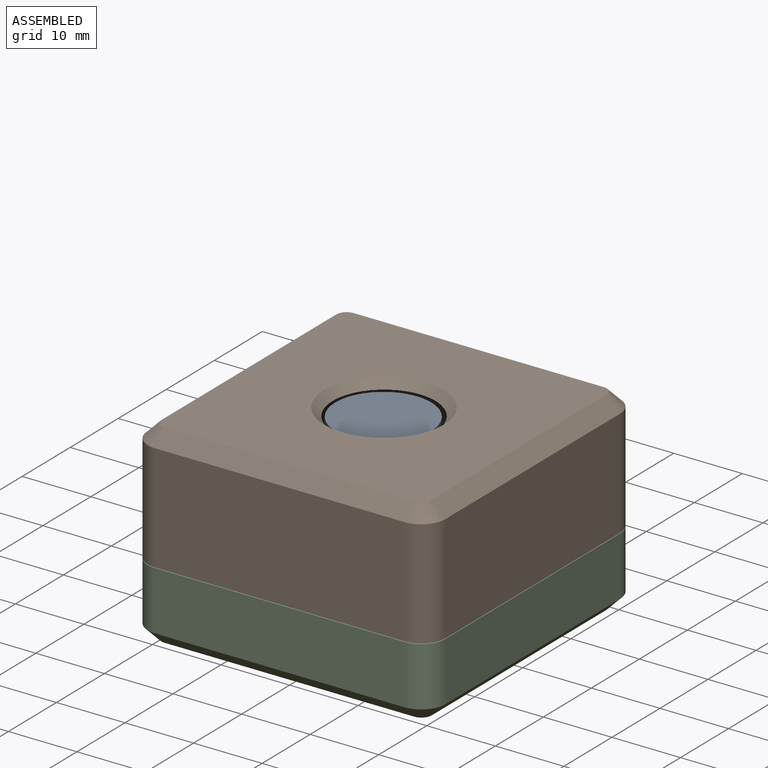
[diagram: assembled view]
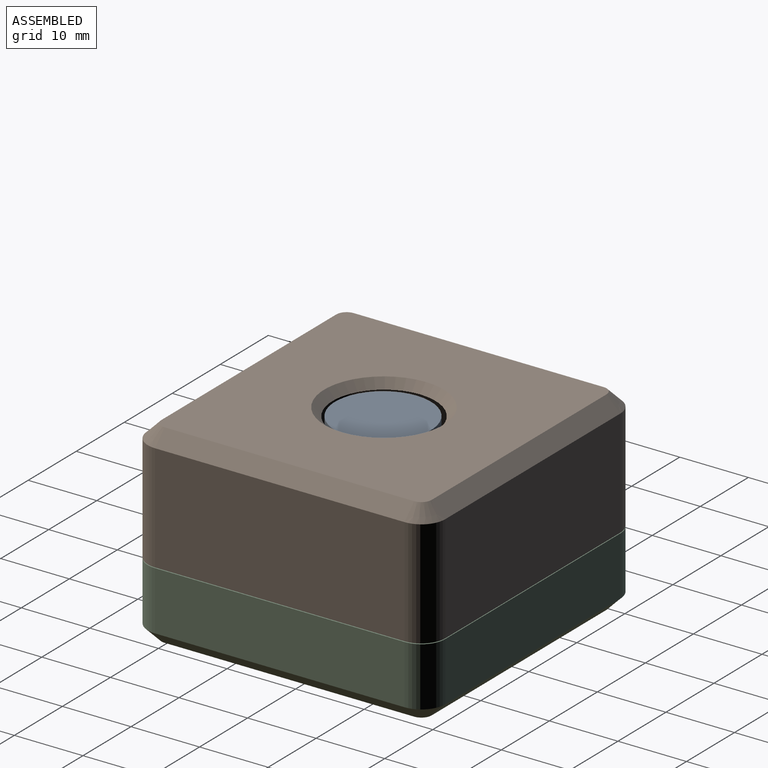
[diagram: assembled view, second angle]
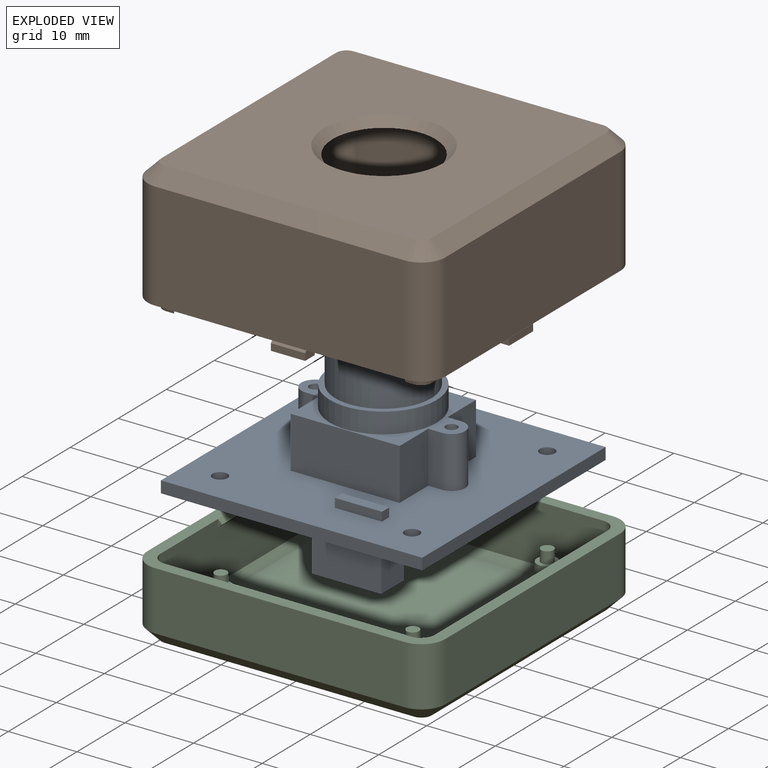
[diagram: exploded view]
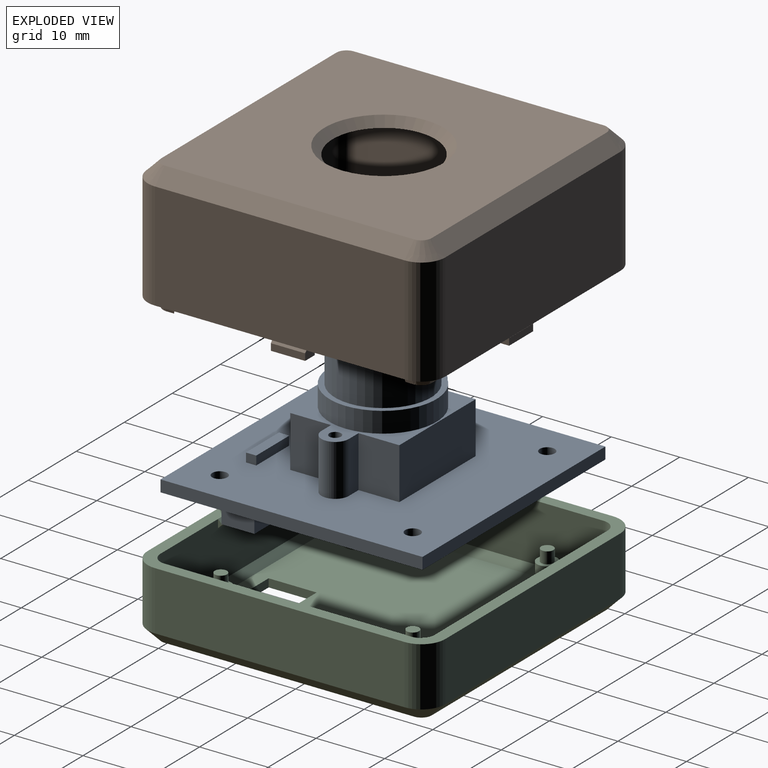
[diagram: exploded view, second angle]
ASSEMBLY  parts=3 mates=2
PART A: 46 faces, bbox 38.1x38.2x27.2 mm
  f0: cylinder r=7.8mm len=15.6mm, axis (0,0,-1), area 147mm2, adj f1,f18
  f1: plane 15.6x15.6mm, normal (0,0,1), area 37.2mm2, adj f0,f3
  f2: plane 14x14mm, normal (0,0,1), area 153.9mm2, adj f3
  f3: cylinder r=7mm len=14mm, axis (0,0,-1), area 373.8mm2, adj f1,f2
  f4: plane 7.5x2mm, normal (0,-1,0), area 15mm2, adj f5,f16,f18,f29
  f5: plane 7.5x5.95mm, normal (-1,0,0), area 44.6mm2, adj f4,f6,f18,f29
  f6: plane 15.9x7.5mm, normal (0,-1,0), area 119.2mm2, adj f5,f7,f18,f29
  f7: plane 7.5x5.95mm, normal (1,0,0), area 44.6mm2, adj f6,f8,f18,f29
  f8: plane 7.5x2mm, normal (0,-1,0), area 15mm2, adj f7,f9,f18,f29
  f9: cylinder r=2mm len=7.5mm, axis (0,0,-1), area 47.1mm2, adj f8,f10,f18,f29
  f10: plane 7.5x2mm, normal (0,1,0), area 15mm2, adj f9,f11,f18,f29
  f11: plane 7.5x5.95mm, normal (1,0,0), area 44.6mm2, adj f10,f12,f18,f29
  f12: plane 15.9x7.5mm, normal (0,1,0), area 119.2mm2, adj f11,f13,f18,f29
  f13: plane 7.5x5.95mm, normal (-1,0,0), area 44.6mm2, adj f12,f14,f18,f29
  f14: plane 7.5x2mm, normal (0,1,0), area 15mm2, adj f13,f16,f18,f29
  f15: cylinder r=0.85mm len=7.5mm, axis (0,0,-1), area 40.1mm2, adj f18,f30
  f16: cylinder r=2mm len=7.5mm, axis (0,0,-1), area 47.1mm2, adj f4,f14,f18,f29
  f17: cylinder r=0.85mm len=7.5mm, axis (0,0,-1), area 40.1mm2, adj f18,f19
  f18: plane 23.9x15.9mm, normal (0,0,1), area 85.7mm2, adj f0,f4,f5,f6,f7,f8,f9,f10
  f19: plane 1.7x1.7mm, normal (0,0,1), area 2.3mm2, adj f17
  f20: plane 38.2x38.1mm, normal (0,0,-1), area 1388mm2, adj f21,f22,f23,f24,f25,f26,f27,f28
  f21: plane 38.2x1.7mm, normal (1,0,0), area 64.9mm2, adj f20,f22,f24,f29
  f22: plane 38.1x1.7mm, normal (0,-1,0), area 64.8mm2, adj f20,f21,f23,f29
  f23: plane 38.2x1.7mm, normal (-1,0,0), area 64.9mm2, adj f20,f22,f24,f29
  f24: plane 38.1x1.7mm, normal (0,1,0), area 64.8mm2, adj f20,f21,f23,f29
  f25: cylinder r=1.1mm len=2.2mm, axis (0,0,1), area 11.7mm2, adj f20,f29
  f26: cylinder r=1.1mm len=2.2mm, axis (0,0,1), area 11.7mm2, adj f20,f29
  f27: cylinder r=1.1mm len=2.2mm, axis (0,0,1), area 11.7mm2, adj f20,f29
  f28: cylinder r=1.1mm len=2.2mm, axis (0,0,1), area 11.7mm2, adj f20,f29
  f29: plane 38.2x38.1mm, normal (0,0,1), area 1148.6mm2, adj f4,f5,f6,f7,f8,f9,f10,f11
  f30: plane 1.7x1.7mm, normal (0,0,1), area 2.3mm2, adj f15
  f31: plane 6.85x1.3mm, normal (0,-1,0), area 8.9mm2, adj f29,f32,f34,f35
  f32: plane 1.5x1.3mm, normal (1,0,0), area 1.9mm2, adj f29,f31,f33,f35
  f33: plane 6.85x1.3mm, normal (0,1,0), area 8.9mm2, adj f29,f32,f34,f35
  f34: plane 1.5x1.3mm, normal (-1,0,0), area 1.9mm2, adj f29,f31,f33,f35
  f35: plane 6.85x1.5mm, normal (0,0,1), area 10.3mm2, adj f31,f32,f33,f34
  f36: plane 6.5x4.8mm, normal (1,0,0), area 31.2mm2, adj f20,f37,f39,f40
  f37: plane 10.05x6.5mm, normal (0,-1,0), area 65.3mm2, adj f20,f36,f38,f40
  f38: plane 6.5x4.8mm, normal (-1,0,0), area 31.2mm2, adj f20,f37,f39,f40
  f39: plane 10.05x6.5mm, normal (0,1,0), area 65.3mm2, adj f20,f36,f38,f40
  f40: plane 10.05x4.8mm, normal (0,0,-1), area 48.2mm2, adj f36,f37,f38,f39
  f41: plane 2x1.3mm, normal (0,-1,0), area 2.6mm2, adj f20,f42,f44,f45
  f42: plane 2x1.3mm, normal (-1,0,0), area 2.6mm2, adj f20,f41,f43,f45
  f43: plane 2x1.3mm, normal (0,1,0), area 2.6mm2, adj f20,f42,f44,f45
  f44: plane 2x1.3mm, normal (1,0,0), area 2.6mm2, adj f20,f41,f43,f45
  f45: plane 2x2mm, normal (0,0,-1), area 4mm2, adj f41,f42,f43,f44
PART B: 92 faces, bbox 43.4x43.4x20.1 mm
  f0: plane 36x15.5mm, normal (0,-1,0), area 540.4mm2, adj f2,f7,f19,f37,f40,f45,f62,f77
  f1: plane 36x15.5mm, normal (-1,0,0), area 540.4mm2, adj f2,f4,f15,f37,f43,f46,f66,f76
  f2: cylinder r=2mm len=14.42mm, axis (0,0,1), area 44.1mm2, adj f0,f1,f64,f77
  f3: plane 36x15.5mm, normal (0,1,0), area 540.4mm2, adj f4,f6,f23,f37,f42,f44,f63,f75
  f4: cylinder r=2mm len=14.42mm, axis (0,0,-1), area 44.1mm2, adj f1,f3,f65,f76
  f5: plane 36x15.5mm, normal (1,0,0), area 540.4mm2, adj f6,f7,f30,f37,f39,f41,f59,f75
  f6: cylinder r=2mm len=14.42mm, axis (0,0,1), area 44.1mm2, adj f3,f5,f61,f75
  f7: cylinder r=2mm len=14.42mm, axis (0,0,-1), area 44.1mm2, adj f0,f5,f60,f78
  f8: plane 5x1mm, normal (1,0,0), area 5mm2, adj f13,f25,f43,f46
  f9: plane 5x1mm, normal (0,1,0), area 5mm2, adj f17,f38,f40,f45
  f10: plane 5x1mm, normal (0,-1,0), area 5mm2, adj f21,f26,f42,f44
  f11: plane 5x1mm, normal (-1,0,0), area 5mm2, adj f27,f28,f39,f41
  f12: plane 5x3.6mm, normal (-1,0,0), area 18mm2, adj f15,f25,f43,f46
  f13: plane 5x0.7mm, normal (0.71,0,-0.71), area 4.9mm2, adj f8,f14,f43,f46
  f14: plane 5x0.7mm, normal (0.71,0,0.71), area 4.9mm2, adj f13,f37,f43,f46
  f15: plane 5x2mm, normal (-0.71,0,-0.71), area 14.1mm2, adj f1,f12,f43,f46
  f16: plane 5x3.6mm, normal (0,-1,0), area 18mm2, adj f19,f38,f40,f45
  f17: plane 5x0.7mm, normal (0,0.71,-0.71), area 4.9mm2, adj f9,f18,f40,f45
  f18: plane 5x0.7mm, normal (0,0.71,0.71), area 4.9mm2, adj f17,f37,f40,f45
  f19: plane 5x2mm, normal (0,-0.71,-0.71), area 14.1mm2, adj f0,f16,f40,f45
  f20: plane 5x3.6mm, normal (0,1,0), area 18mm2, adj f23,f26,f42,f44
  f21: plane 5x0.7mm, normal (0,-0.71,-0.71), area 4.9mm2, adj f10,f22,f42,f44
  f22: plane 5x0.7mm, normal (0,-0.71,0.71), area 4.9mm2, adj f21,f37,f42,f44
  f23: plane 5x2mm, normal (0,0.71,-0.71), area 14.1mm2, adj f3,f20,f42,f44
  f24: plane 5x3.6mm, normal (1,0,0), area 18mm2, adj f27,f30,f39,f41
  f25: plane 5x2mm, normal (0,0,1), area 10mm2, adj f8,f12,f43,f46
  f26: plane 5x2mm, normal (0,0,1), area 10mm2, adj f10,f20,f42,f44
  f27: plane 5x2mm, normal (0,0,1), area 10mm2, adj f11,f24,f39,f41
  f28: plane 5x0.7mm, normal (-0.71,0,-0.71), area 4.9mm2, adj f11,f29,f39,f41
  f29: plane 5x0.7mm, normal (-0.71,0,0.71), area 4.9mm2, adj f28,f37,f39,f41
  f30: plane 5x2mm, normal (0.71,0,-0.71), area 14.1mm2, adj f5,f24,f39,f41
  f31: plane 38x38mm, normal (0,0,1), area 1266.4mm2, adj f59,f60,f61,f62,f63,f64,f65,f66
  f32: plane 36.4x15.7mm, normal (0,1,0), area 571.5mm2, adj f37,f47,f50,f58
  f33: plane 36.4x15.7mm, normal (-1,0,0), area 571.5mm2, adj f37,f47,f48,f54
  f34: plane 36.4x15.7mm, normal (0,-1,0), area 571.5mm2, adj f37,f48,f49,f51
  f35: plane 36.4x15.7mm, normal (1,0,0), area 571.5mm2, adj f37,f49,f50,f55
  f36: plane 39.4x39.4mm, normal (0,0,-1), area 1312.6mm2, adj f51,f52,f53,f54,f55,f56,f57,f58
  f37: plane 43.4x43.4mm, normal (0,0,1), area 276.5mm2, adj f0,f1,f3,f5,f14,f18,f22,f29
  f38: plane 5x2mm, normal (0,0,1), area 10mm2, adj f9,f16,f40,f45
  f39: plane 5.6x2mm, normal (0,1,0), area 8.7mm2, adj f5,f11,f24,f27,f28,f29,f30
  f40: plane 5.6x2mm, normal (-1,0,0), area 8.7mm2, adj f0,f9,f16,f17,f18,f19,f38
  f41: plane 5.6x2mm, normal (0,-1,0), area 8.7mm2, adj f5,f11,f24,f27,f28,f29,f30
  f42: plane 5.6x2mm, normal (-1,0,0), area 8.7mm2, adj f3,f10,f20,f21,f22,f23,f26
  f43: plane 5.6x2mm, normal (0,-1,0), area 8.7mm2, adj f1,f8,f12,f13,f14,f15,f25
  f44: plane 5.6x2mm, normal (1,0,0), area 8.7mm2, adj f3,f10,f20,f21,f22,f23,f26
  f45: plane 5.6x2mm, normal (1,0,0), area 8.7mm2, adj f0,f9,f16,f17,f18,f19,f38
  f46: plane 5.6x2mm, normal (0,1,0), area 8.7mm2, adj f1,f8,f12,f13,f14,f15,f25
  f47: cylinder r=3.5mm len=15.7mm, axis (0,0,-1), area 86.3mm2, adj f32,f33,f37,f56
  f48: cylinder r=3.5mm len=15.7mm, axis (0,0,1), area 86.3mm2, adj f33,f34,f37,f52
  f49: cylinder r=3.5mm len=15.7mm, axis (0,0,-1), area 86.3mm2, adj f34,f35,f37,f53
  f50: cylinder r=3.5mm len=15.7mm, axis (0,0,1), area 86.3mm2, adj f32,f35,f37,f57
  f51: plane 36.4x2mm, normal (0,-0.71,-0.71), area 103mm2, adj f34,f36,f52,f53
  f52: cone r=1.5mm half-angle=45deg, axis (0,0,1), area 11.1mm2, adj f36,f48,f51,f54
  f53: cone r=1.5mm half-angle=45deg, axis (0,0,1), area 11.1mm2, adj f36,f49,f51,f55
  f54: plane 36.4x2mm, normal (-0.71,0,-0.71), area 103mm2, adj f33,f36,f52,f56
  f55: plane 36.4x2mm, normal (0.71,0,-0.71), area 103mm2, adj f35,f36,f53,f57
  f56: cone r=1.5mm half-angle=45deg, axis (0,0,1), area 11.1mm2, adj f36,f47,f54,f58
  f57: cone r=1.5mm half-angle=45deg, axis (0,0,1), area 11.1mm2, adj f36,f50,f55,f58
  f58: plane 36.4x2mm, normal (0,0.71,-0.71), area 103mm2, adj f32,f36,f56,f57
  f59: plane 36x1mm, normal (0.71,0,0.71), area 50.9mm2, adj f5,f31,f60,f61
  f60: cone r=1mm half-angle=45deg, axis (0,0,1), area 3.3mm2, adj f7,f31,f59,f62
  f61: cone r=1mm half-angle=45deg, axis (0,0,1), area 3.3mm2, adj f6,f31,f59,f63
  f62: plane 36x1mm, normal (0,-0.71,0.71), area 50.9mm2, adj f0,f31,f60,f64
  f63: plane 36x1mm, normal (0,0.71,0.71), area 50.9mm2, adj f3,f31,f61,f65
  f64: cone r=1mm half-angle=45deg, axis (0,0,1), area 3.3mm2, adj f2,f31,f62,f66
  f65: cone r=1mm half-angle=45deg, axis (0,0,1), area 3.3mm2, adj f4,f31,f63,f66
  f66: plane 36x1mm, normal (-0.71,0,0.71), area 50.9mm2, adj f1,f31,f64,f65
  f67: plane 3.52x3.52mm, normal (0.71,-0.71,0), area 6.6mm2, adj f68,f78,f88,f90
  f68: plane 2.72x2.72mm, normal (0,0,1), area 3.1mm2, adj f67,f88,f89,f90
  f69: plane 3.52x3.52mm, normal (0.71,0.71,0), area 6.6mm2, adj f70,f75,f85,f87
  f70: plane 2.72x2.72mm, normal (0,0,1), area 3.1mm2, adj f69,f85,f86,f87
  f71: plane 3.52x3.52mm, normal (-0.71,0.71,0), area 6.6mm2, adj f72,f76,f82,f84
  f72: plane 2.72x2.72mm, normal (0,0,1), area 3.1mm2, adj f71,f82,f83,f84
  f73: plane 3.52x3.52mm, normal (-0.71,-0.71,0), area 6.6mm2, adj f74,f77,f79,f81
  f74: plane 2.72x2.72mm, normal (0,0,1), area 3.1mm2, adj f73,f79,f80,f81
  f75: plane 3.52x3.52mm, normal (0.5,0.5,-0.71), area 7.6mm2, adj f3,f5,f6,f69
  f76: plane 3.52x3.52mm, normal (-0.5,0.5,-0.71), area 7.6mm2, adj f1,f3,f4,f71
  f77: plane 3.52x3.52mm, normal (-0.5,-0.5,-0.71), area 7.6mm2, adj f0,f1,f2,f73
  f78: plane 3.52x3.52mm, normal (0.5,-0.5,-0.71), area 7.6mm2, adj f0,f5,f7,f67
  f79: plane 1.52x1.5mm, normal (0.97,0,0.26), area 2.1mm2, adj f37,f73,f74,f80
  f80: cone r=2mm half-angle=15deg, axis (0,0,-1), area 4.4mm2, adj f37,f74,f79,f81
  f81: plane 1.52x1.5mm, normal (0,0.97,0.26), area 2.1mm2, adj f37,f73,f74,f80
  f82: plane 1.52x1.5mm, normal (0,-0.97,0.26), area 2.1mm2, adj f37,f71,f72,f83
  f83: cone r=2mm half-angle=15deg, axis (0,0,-1), area 4.4mm2, adj f37,f72,f82,f84
  f84: plane 1.52x1.5mm, normal (0.97,0,0.26), area 2.1mm2, adj f37,f71,f72,f83
  f85: plane 1.52x1.5mm, normal (-0.97,0,0.26), area 2.1mm2, adj f37,f69,f70,f86
  f86: cone r=2mm half-angle=15deg, axis (0,0,-1), area 4.4mm2, adj f37,f70,f85,f87
  f87: plane 1.52x1.5mm, normal (0,-0.97,0.26), area 2.1mm2, adj f37,f69,f70,f86
  f88: plane 1.52x1.5mm, normal (0,0.97,0.26), area 2.1mm2, adj f37,f67,f68,f89
  f89: cone r=2mm half-angle=15deg, axis (0,0,-1), area 4.4mm2, adj f37,f68,f88,f90
  f90: plane 1.52x1.5mm, normal (-0.97,0,0.26), area 2.1mm2, adj f37,f67,f68,f89
  f91: cone r=8.7mm half-angle=45deg, axis (0,0,-1), area 86.4mm2, adj f31,f36
PART C: 71 faces, bbox 43.4x43.4x10.6 mm
  f0: plane 12x0.6mm, normal (-0.71,0,0.71), area 10.2mm2, adj f1,f18,f44,f45
  f1: plane 12x0.6mm, normal (-0.71,0,-0.71), area 10.2mm2, adj f0,f17,f44,f45
  f2: plane 12x0.6mm, normal (0,-0.71,0.71), area 10.2mm2, adj f3,f18,f40,f46
  f3: plane 12x0.6mm, normal (0,-0.71,-0.71), area 10.2mm2, adj f2,f16,f40,f46
  f4: plane 12x0.6mm, normal (0,0.71,0.71), area 10.2mm2, adj f5,f18,f42,f43
  f5: plane 12x0.6mm, normal (0,0.71,-0.71), area 10.2mm2, adj f4,f9,f42,f43
  f6: plane 12x0.6mm, normal (0.71,0,0.71), area 10.2mm2, adj f7,f18,f39,f41
  f7: plane 12x0.6mm, normal (0.71,0,-0.71), area 10.2mm2, adj f6,f8,f39,f41
  f8: plane 36x8.4mm, normal (1,0,0), area 288mm2, adj f7,f18,f39,f41,f47,f50,f63
  f9: plane 36x8.4mm, normal (0,1,0), area 288mm2, adj f5,f18,f42,f43,f49,f50,f67
  f10: plane 39.4x39.4mm, normal (0,0,-1), area 1466.4mm2, adj f35,f36,f37,f38,f55,f56,f57,f58
  f11: plane 38x38mm, normal (0,0,1), area 1330.9mm2, adj f19,f23,f27,f31,f35,f36,f37,f38
  f12: plane 36.4x8.6mm, normal (0,1,0), area 313mm2, adj f18,f51,f54,f62
  f13: plane 36.4x8.6mm, normal (-1,0,0), area 313mm2, adj f18,f51,f52,f58
  f14: plane 36.4x8.6mm, normal (0,-1,0), area 313mm2, adj f18,f52,f53,f55
  f15: plane 36.4x8.6mm, normal (1,0,0), area 313mm2, adj f18,f53,f54,f59
  f16: plane 36x8.4mm, normal (0,-1,0), area 288mm2, adj f3,f18,f40,f46,f47,f48,f66
  f17: plane 36x8.4mm, normal (-1,0,0), area 288mm2, adj f1,f18,f44,f45,f48,f49,f70
  f18: plane 43.4x43.4mm, normal (0,0,1), area 276.5mm2, adj f0,f2,f4,f6,f8,f9,f12,f13
  f19: cylinder r=1.5mm len=5.3mm, axis (0,0,-1), area 50mm2, adj f11,f20
  f20: plane 3x3mm, normal (0,0,1), area 4.5mm2, adj f19,f22
  f21: plane 1.8x1.8mm, normal (0,0,1), area 2.5mm2, adj f22
  f22: cylinder r=0.9mm len=1.8mm, axis (0,0,-1), area 9.6mm2, adj f20,f21
  f23: cylinder r=1.5mm len=5.3mm, axis (0,0,-1), area 50mm2, adj f11,f24
  f24: plane 3x3mm, normal (0,0,1), area 4.5mm2, adj f23,f26
  f25: plane 1.8x1.8mm, normal (0,0,1), area 2.5mm2, adj f26
  f26: cylinder r=0.9mm len=1.8mm, axis (0,0,-1), area 9.6mm2, adj f24,f25
  f27: cylinder r=1.5mm len=5.3mm, axis (0,0,-1), area 50mm2, adj f11,f28
  f28: plane 3x3mm, normal (0,0,1), area 4.5mm2, adj f27,f30
  f29: plane 1.8x1.8mm, normal (0,0,1), area 2.5mm2, adj f30
  f30: cylinder r=0.9mm len=1.8mm, axis (0,0,-1), area 9.6mm2, adj f28,f29
  f31: cylinder r=1.5mm len=5.3mm, axis (0,0,-1), area 50mm2, adj f11,f32
  f32: plane 3x3mm, normal (0,0,1), area 4.5mm2, adj f31,f34
  f33: plane 1.8x1.8mm, normal (0,0,1), area 2.5mm2, adj f34
  f34: cylinder r=0.9mm len=1.8mm, axis (0,0,-1), area 9.6mm2, adj f32,f33
  f35: plane 12x1.2mm, normal (0,1,0), area 14.4mm2, adj f10,f11,f36,f38
  f36: plane 7x1.2mm, normal (1,0,0), area 8.4mm2, adj f10,f11,f35,f37
  f37: plane 12x1.2mm, normal (0,-1,0), area 14.4mm2, adj f10,f11,f36,f38
  f38: plane 7x1.2mm, normal (-1,0,0), area 8.4mm2, adj f10,f11,f35,f37
  f39: plane 1.2x0.6mm, normal (0,1,0), area 0.4mm2, adj f6,f7,f8
  f40: plane 1.2x0.6mm, normal (-1,0,0), area 0.4mm2, adj f2,f3,f16
  f41: plane 1.2x0.6mm, normal (0,-1,0), area 0.4mm2, adj f6,f7,f8
  f42: plane 1.2x0.6mm, normal (-1,0,0), area 0.4mm2, adj f4,f5,f9
  f43: plane 1.2x0.6mm, normal (1,0,0), area 0.4mm2, adj f4,f5,f9
  f44: plane 1.2x0.6mm, normal (0,-1,0), area 0.4mm2, adj f0,f1,f17
  f45: plane 1.2x0.6mm, normal (0,1,0), area 0.4mm2, adj f0,f1,f17
  f46: plane 1.2x0.6mm, normal (1,0,0), area 0.4mm2, adj f2,f3,f16
  f47: cylinder r=2mm len=8.4mm, axis (0,0,-1), area 26.4mm2, adj f8,f16,f18,f64
  f48: cylinder r=2mm len=8.4mm, axis (0,0,1), area 26.4mm2, adj f16,f17,f18,f68
  f49: cylinder r=2mm len=8.4mm, axis (0,0,-1), area 26.4mm2, adj f9,f17,f18,f69
  f50: cylinder r=2mm len=8.4mm, axis (0,0,1), area 26.4mm2, adj f8,f9,f18,f65
  f51: cylinder r=3.5mm len=8.6mm, axis (0,0,-1), area 47.3mm2, adj f12,f13,f18,f60
  f52: cylinder r=3.5mm len=8.6mm, axis (0,0,1), area 47.3mm2, adj f13,f14,f18,f56
  f53: cylinder r=3.5mm len=8.6mm, axis (0,0,-1), area 47.3mm2, adj f14,f15,f18,f57
  f54: cylinder r=3.5mm len=8.6mm, axis (0,0,1), area 47.3mm2, adj f12,f15,f18,f61
  f55: plane 36.4x2mm, normal (0,-0.71,-0.71), area 103mm2, adj f10,f14,f56,f57
  f56: cone r=1.5mm half-angle=45deg, axis (0,0,1), area 11.1mm2, adj f10,f52,f55,f58
  f57: cone r=1.5mm half-angle=45deg, axis (0,0,1), area 11.1mm2, adj f10,f53,f55,f59
  f58: plane 36.4x2mm, normal (-0.71,0,-0.71), area 103mm2, adj f10,f13,f56,f60
  f59: plane 36.4x2mm, normal (0.71,0,-0.71), area 103mm2, adj f10,f15,f57,f61
  f60: cone r=1.5mm half-angle=45deg, axis (0,0,1), area 11.1mm2, adj f10,f51,f58,f62
  f61: cone r=1.5mm half-angle=45deg, axis (0,0,1), area 11.1mm2, adj f10,f54,f59,f62
  f62: plane 36.4x2mm, normal (0,0.71,-0.71), area 103mm2, adj f10,f12,f60,f61
  f63: plane 36x1mm, normal (0.71,0,0.71), area 50.9mm2, adj f8,f11,f64,f65
  f64: cone r=1mm half-angle=45deg, axis (0,0,1), area 3.3mm2, adj f11,f47,f63,f66
  f65: cone r=1mm half-angle=45deg, axis (0,0,1), area 3.3mm2, adj f11,f50,f63,f67
  f66: plane 36x1mm, normal (0,-0.71,0.71), area 50.9mm2, adj f11,f16,f64,f68
  f67: plane 36x1mm, normal (0,0.71,0.71), area 50.9mm2, adj f9,f11,f65,f69
  f68: cone r=1mm half-angle=45deg, axis (0,0,1), area 3.3mm2, adj f11,f48,f66,f70
  f69: cone r=1mm half-angle=45deg, axis (0,0,1), area 3.3mm2, adj f11,f49,f67,f70
  f70: plane 36x1mm, normal (-0.71,0,0.71), area 50.9mm2, adj f11,f17,f68,f69
PLACE A t=(0.36,-1,7)mm
PLACE B rot(axis=(1,0,0),180deg) t=(0.36,-0.85,26)mm
PLACE C t=(0.36,-0.85,0)mm
MATE fastened A.f26 <-> C.f31  axis (0,0,1) through (14.36,13.15,5.3)mm
MATE fastened C.f18 <-> B.f91  axis (0,0,1) through (0.36,-0.85,9.4)mm
